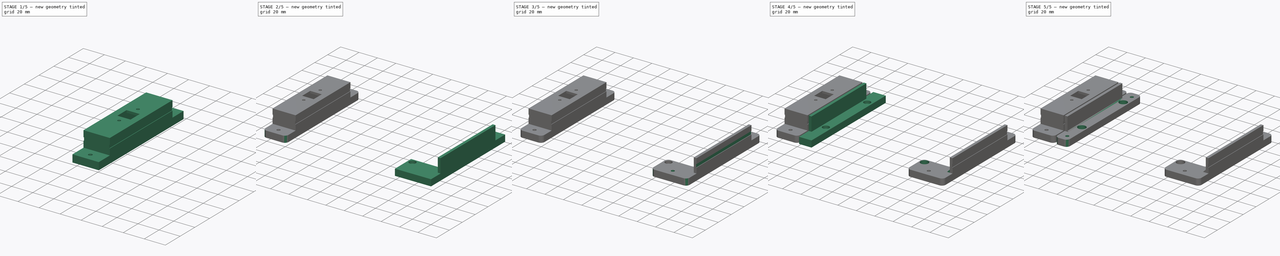
[diagram: build sequence overview — one tinted view per stage of 5, left to right]
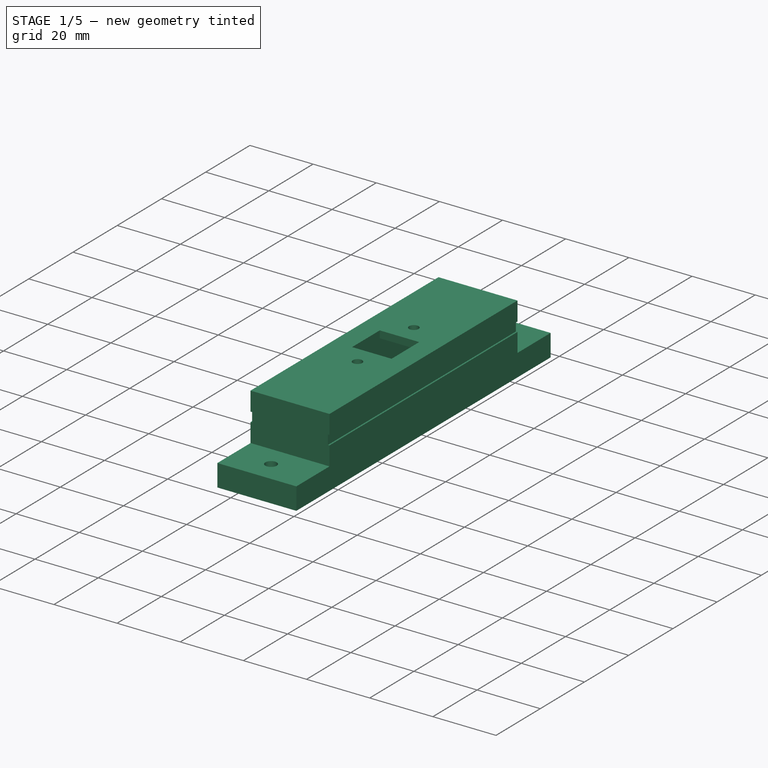
[diagram: stage 1 of 5 — iso view after this stage's code; geometry added in this stage tinted green]
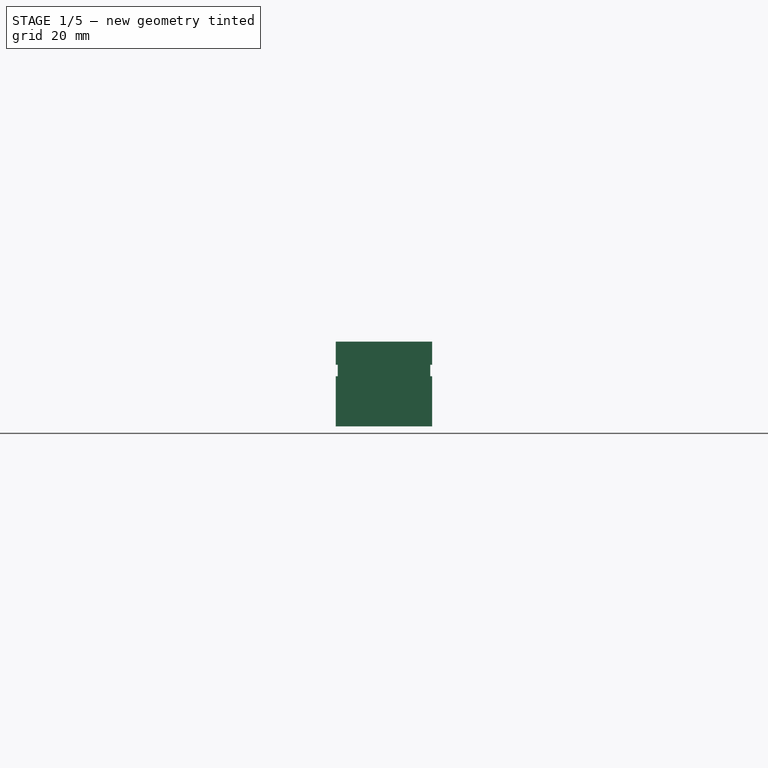
[diagram: stage 1 of 5 — front view after this stage's code; geometry added in this stage tinted green]
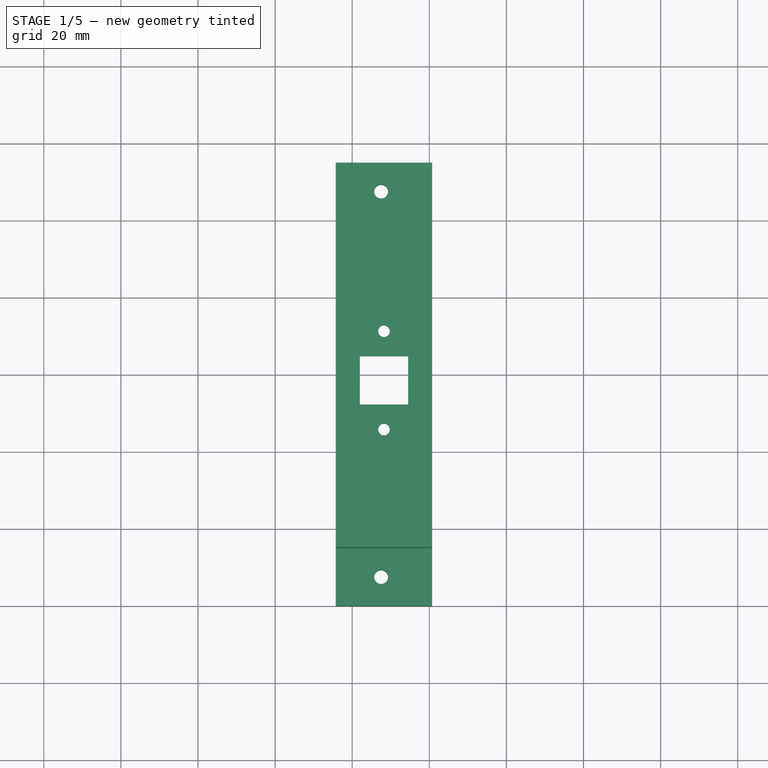
[diagram: stage 1 of 5 — top view after this stage's code; geometry added in this stage tinted green]
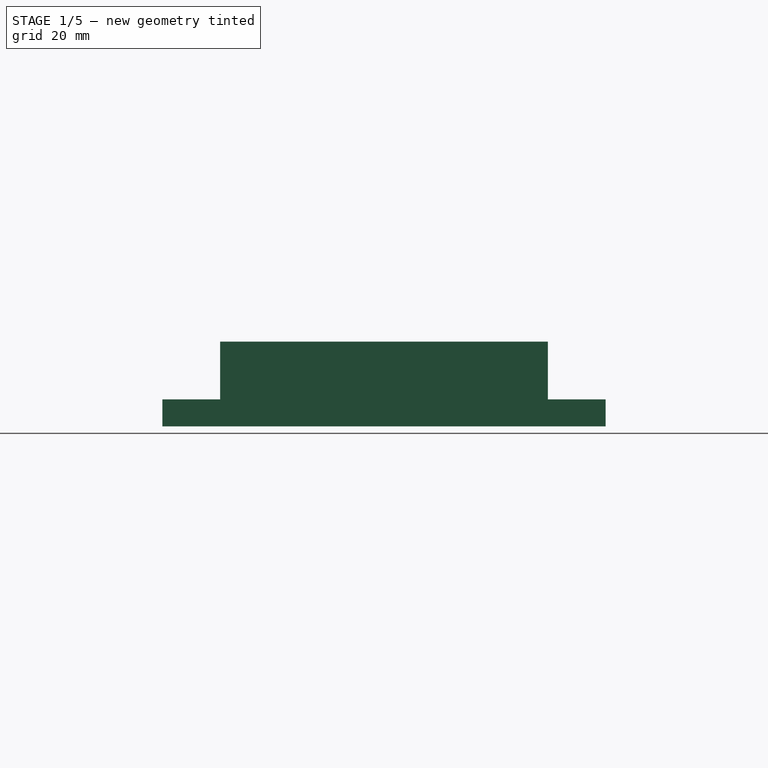
[diagram: stage 1 of 5 — right view after this stage's code; geometry added in this stage tinted green]
FCSTD DOCUMENT  (FreeCAD 0.15R4671 (Git))
Label: PSU_Brackets
License: All rights reserved
LicenseURL: http://en.wikipedia.org/wiki/All_rights_reserved
objects: Sketcher::SketchObject×27, PartDesign::Pocket×23, Part::Feature×6, PartDesign::Fillet×5, PartDesign::Pad×4, PartDesign::Chamfer×2
note: 94 computed .brp shape members not serialized (recipe doc carries the construction recipe); baked Part::Feature solids carry a one-line shape summary decoded from their .brp

FEATURE [Sketcher::SketchObject] Sketch019
  sketch-geometry (4):
    g0: LineSegment StartX=-104.25 StartY=115 StartZ=0 EndX=-79.25 EndY=115 EndZ=0
    g1: LineSegment StartX=-79.25 StartY=115 StartZ=0 EndX=-79.25 EndY=0 EndZ=0
    g2: LineSegment StartX=-79.25 StartY=0 StartZ=0 EndX=-104.25 EndY=0 EndZ=0
    g3: LineSegment StartX=-104.25 StartY=0 StartZ=0 EndX=-104.25 EndY=115 EndZ=0
  constraints (10):
    c: Coincident(g0,g1)
    c: Coincident(g1,g2)
    c: Coincident(g2,g3)
    c: Coincident(g3,g0)
    c: Horizontal(g0)
    c: Horizontal(g2)
    c: Vertical(g1)
    c: Vertical(g3)
    c: DistanceX(g2,g1) = 25
    c: DistanceY(g0,g2) = -115
FEATURE [PartDesign::Pad] Pad002
  Length = 7
  Length2 = 100
  Sketch = -> Sketch019
  Type = 0
FEATURE [Sketcher::SketchObject] Sketch020
  Placement = pos=(0,0,7) rot=(0,0,1;0rad)
  Support = -> Pad002 [Face6]
  sketch-geometry (4):
    g0: LineSegment StartX=-79.25 StartY=100 StartZ=0 EndX=-104.25 EndY=100 EndZ=0
    g1: LineSegment StartX=-104.25 StartY=100 StartZ=0 EndX=-104.25 EndY=15 EndZ=0
    g2: LineSegment StartX=-104.25 StartY=15 StartZ=0 EndX=-79.25 EndY=15 EndZ=0
    g3: LineSegment StartX=-79.25 StartY=15 StartZ=0 EndX=-79.25 EndY=100 EndZ=0
  constraints (8):
    c: Coincident(g0,g1)
    c: Coincident(g1,g2)
    c: Coincident(g2,g3)
    c: Coincident(g3,g0)
    c: Horizontal(g0)
    c: Horizontal(g2)
    c: Vertical(g1)
    c: Vertical(g3)
FEATURE [PartDesign::Pad] Pad003
  Length = 15
  Length2 = 100
  Sketch = -> Sketch020
  Type = 0
FEATURE [Sketcher::SketchObject] Sketch021
  Placement = pos=(0,0,22) rot=(0,0,1;0rad)
  Support = -> Pad003 [Face8]
  sketch-geometry (4):
    g0: LineSegment StartX=-98 StartY=64.5 StartZ=0 EndX=-85.5 EndY=64.5 EndZ=0
    g1: LineSegment StartX=-85.5 StartY=64.5 StartZ=0 EndX=-85.5 EndY=52 EndZ=0
    g2: LineSegment StartX=-85.5 StartY=52 StartZ=0 EndX=-98 EndY=52 EndZ=0
    g3: LineSegment StartX=-98 StartY=52 StartZ=0 EndX=-98 EndY=64.5 EndZ=0
  constraints (10):
    c: Coincident(g0,g1)
    c: Coincident(g1,g2)
    c: Coincident(g2,g3)
    c: Coincident(g3,g0)
    c: Horizontal(g0)
    c: Horizontal(g2)
    c: Vertical(g1)
    c: Vertical(g3)
    c: DistanceX(g0,g0) = 12.5
    c: DistanceY(g0,g1) = -12.5
FEATURE [PartDesign::Pocket] Pocket017
  Length = 5
  Sketch = -> Sketch021
  Type = 1
FEATURE [Sketcher::SketchObject] Sketch022
  Placement = pos=(0,0,22) rot=(0,0,1;0rad)
  Support = -> Pocket017 [Face9]
  sketch-geometry (2):
    g0: Circle CenterX=-91.75 CenterY=71 CenterZ=0 NormalX=0 NormalY=0 NormalZ=1 Radius=1.5
    g1: Circle CenterX=-91.75 CenterY=45.5 CenterZ=0 NormalX=0 NormalY=0 NormalZ=1 Radius=1.5
  constraints (4):
    c: DistanceY(g1,g0) = 25.5
    c: Radius(g1) = 1.5
    c: Equal(g1,g0)
    c: DistanceX(g0,g1) = 0
FEATURE [PartDesign::Pocket] Pocket018
  Length = 5
  Sketch = -> Sketch022
  Type = 1
FEATURE [Sketcher::SketchObject] Sketch023
  Placement = pos=(0,0,0) rot=(1,0,0;3.14159rad)
  Support = -> Pocket018 [Face4]
  sketch-geometry (4):
    g0: LineSegment StartX=-99.75 StartY=-17.5 StartZ=0 EndX=-83.75 EndY=-17.5 EndZ=0
    g1: LineSegment StartX=-83.75 StartY=-17.5 StartZ=0 EndX=-83.75 EndY=-97.5 EndZ=0
    g2: LineSegment StartX=-83.75 StartY=-97.5 StartZ=0 EndX=-99.75 EndY=-97.5 EndZ=0
    g3: LineSegment StartX=-99.75 StartY=-97.5 StartZ=0 EndX=-99.75 EndY=-17.5 EndZ=0
  constraints (10):
    c: Coincident(g0,g1)
    c: Coincident(g1,g2)
    c: Coincident(g2,g3)
    c: Coincident(g3,g0)
    c: Horizontal(g0)
    c: Horizontal(g2)
    c: Vertical(g1)
    c: Vertical(g3)
    c: DistanceY(g0,g2) = -80
    c: DistanceX(g0,g0) = -16
FEATURE [PartDesign::Pocket] Pocket019
  Length = 19.75
  Sketch = -> Sketch023
  Type = 0
FEATURE [Sketcher::SketchObject] Sketch024
  Placement = pos=(0,15,0) rot=(1,0,0;1.5708rad)
  Support = -> Pocket019 [Face8]
  sketch-geometry (8):
    g0: LineSegment StartX=-104.75 StartY=16 StartZ=0 EndX=-103.75 EndY=16 EndZ=0
    g1: LineSegment StartX=-103.75 StartY=16 StartZ=0 EndX=-103.75 EndY=13 EndZ=0
    g2: LineSegment StartX=-103.75 StartY=13 StartZ=0 EndX=-104.75 EndY=13 EndZ=0
    g3: LineSegment StartX=-104.75 StartY=13 StartZ=0 EndX=-104.75 EndY=16 EndZ=0
    g4: LineSegment StartX=-78.75 StartY=16 StartZ=0 EndX=-79.75 EndY=16 EndZ=0
    g5: LineSegment StartX=-79.75 StartY=16 StartZ=0 EndX=-79.75 EndY=13 EndZ=0
    g6: LineSegment StartX=-79.75 StartY=13 StartZ=0 EndX=-78.75 EndY=13 EndZ=0
    g7: LineSegment StartX=-78.75 StartY=13 StartZ=0 EndX=-78.75 EndY=16 EndZ=0
  constraints (16):
    c: Coincident(g0,g1)
    c: Coincident(g1,g2)
    c: Coincident(g2,g3)
    c: Coincident(g3,g0)
    c: Horizontal(g0)
    c: Horizontal(g2)
    c: Vertical(g1)
    c: Vertical(g3)
    c: Coincident(g4,g5)
    c: Coincident(g5,g6)
    c: Coincident(g6,g7)
    c: Coincident(g7,g4)
    c: Horizontal(g4)
    c: Horizontal(g6)
    c: Vertical(g5)
    c: Vertical(g7)
FEATURE [PartDesign::Pocket] Pocket020
  Length = 5
  Sketch = -> Sketch024
  Type = 1
FEATURE [Sketcher::SketchObject] Sketch025
  Placement = pos=(0,0,0) rot=(1,0,0;3.14159rad)
  Support = -> Pocket020 [Face4]
  sketch-geometry (2):
    g0: Circle CenterX=-92.5 CenterY=-107.5 CenterZ=0 NormalX=0 NormalY=0 NormalZ=1 Radius=1.8
    g1: Circle CenterX=-92.5 CenterY=-7.5 CenterZ=0 NormalX=0 NormalY=0 NormalZ=1 Radius=1.8
  constraints (2):
    c: Radius(g1) = 1.8
    c: Equal(g1,g0)
FEATURE [PartDesign::Pocket] Pocket021
  Length = 5
  Sketch = -> Sketch025
  Type = 1
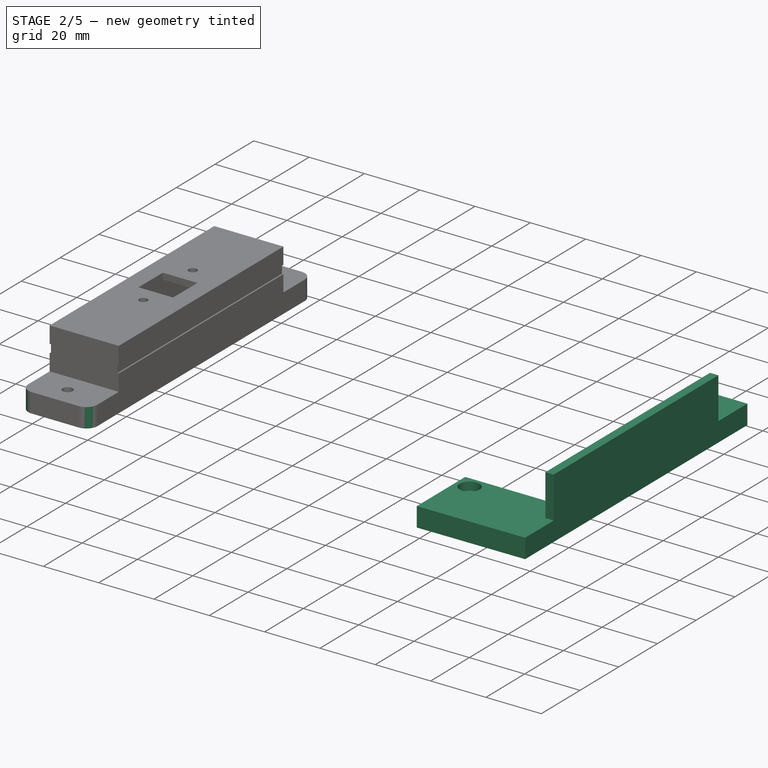
[diagram: stage 2 of 5 — iso view after this stage's code; geometry added in this stage tinted green]
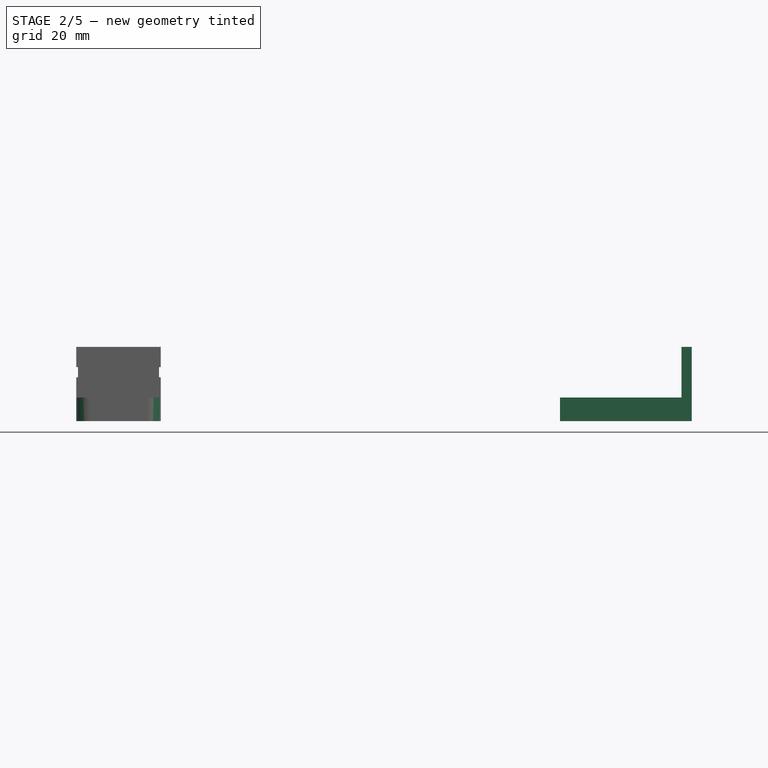
[diagram: stage 2 of 5 — front view after this stage's code; geometry added in this stage tinted green]
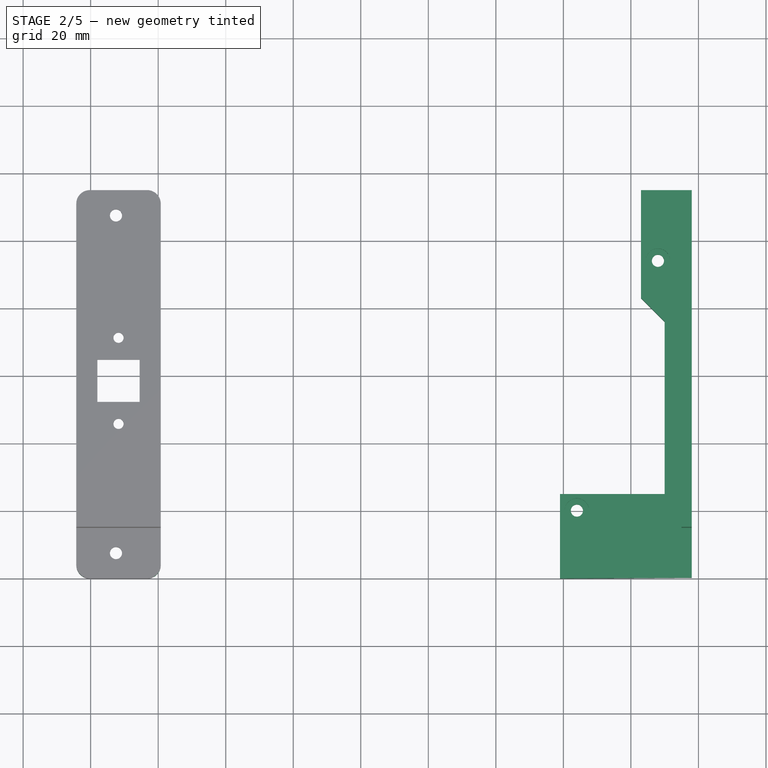
[diagram: stage 2 of 5 — top view after this stage's code; geometry added in this stage tinted green]
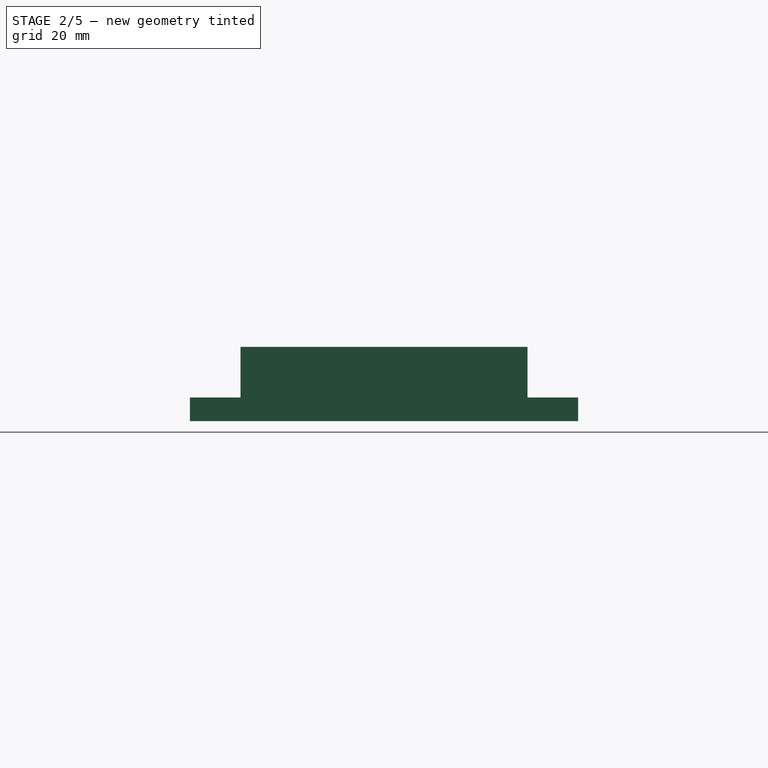
[diagram: stage 2 of 5 — right view after this stage's code; geometry added in this stage tinted green]
FEATURE [Part::Feature] Part__Feature  label="ATX Power Supply"
  Placement = pos=(0,14.5,0.5) rot=(0,0,1;0rad)
  shape: bbox 150 x 86 x 142.5 mm, 1277 faces (baked)
FEATURE [Part::Feature] Part__Feature001  label="ATX Power Supply001"
  Placement = pos=(44.5,38.5,0.5) rot=(0,0,1;0rad)
  shape: bbox 49.31 x 22.99 x 31 mm, 116 faces (baked)
FEATURE [Part::Feature] Part__Feature002  label="ATX Power Supply002"
  Placement = pos=(36,69,-7.5) rot=(0,0,-1;1.5708rad)
  shape: bbox 21 x 15 x 21.45 mm, 145 faces (baked)
FEATURE [Part::Feature] Part__Feature003  label="ATX Power Supply003"
  Placement = pos=(0,99.675,-70) rot=(0,0.707107,-0.707107;3.14159rad)
  shape: bbox 123 x 3.274 x 123 mm, 78 faces (baked)
FEATURE [Sketcher::SketchObject] Sketch
  sketch-geometry (8):
    g0: LineSegment StartX=39 StartY=0 StartZ=0 EndX=39 EndY=25 EndZ=0
    g1: LineSegment StartX=39 StartY=25 StartZ=0 EndX=70 EndY=25 EndZ=0
    g2: LineSegment StartX=63 StartY=115 StartZ=0 EndX=78 EndY=115 EndZ=0
    g3: LineSegment StartX=78 StartY=115 StartZ=0 EndX=78 EndY=0.241195 EndZ=0
    g4: LineSegment StartX=78 StartY=0.241195 StartZ=0 EndX=39 EndY=0 EndZ=0
    g5: LineSegment StartX=70 StartY=25 StartZ=0 EndX=70 EndY=76 EndZ=0
    g6: LineSegment StartX=70 StartY=76 StartZ=0 EndX=63 EndY=83 EndZ=0
    g7: LineSegment StartX=63 StartY=83 StartZ=0 EndX=63 EndY=115 EndZ=0
  constraints (7):
    c: Coincident(g0,g1)
    c: Coincident(g2,g3)
    c: Coincident(g3,g4)
    c: Coincident(g4,g0)
    c: Coincident(g5,g6)
    c: Coincident(g6,g7)
    c: Coincident(g2,g7)
FEATURE [Part::Feature] Part__Feature004  label="OB1515_180mm"
  Placement = pos=(-105,107.5,14.5) rot=(0,1,0;1.5708rad)
  shape: bbox 180 x 15 x 15 mm, 158 faces (baked)
FEATURE [Part::Feature] Part__Feature005  label="OB1515_180mm001"
  Placement = pos=(-105,107.5,14.5) rot=(0,1,0;1.5708rad)
  shape: bbox 180 x 15 x 15 mm, 158 faces (baked)
FEATURE [PartDesign::Pad] Pad
  Length = 22
  Length2 = 100
  Sketch = -> Sketch
  Type = 0
FEATURE [Sketcher::SketchObject] Sketch001
  Placement = pos=(78,0,0) rot=(0.57735,0.57735,0.57735;2.0944rad)
  Support = -> Pad [Face7]
  sketch-geometry (8):
    g0: LineSegment StartX=-1 StartY=23 StartZ=0 EndX=15 EndY=23 EndZ=0
    g1: LineSegment StartX=15 StartY=23 StartZ=0 EndX=15 EndY=7 EndZ=0
    g2: LineSegment StartX=15 StartY=7 StartZ=0 EndX=-1 EndY=7 EndZ=0
    g3: LineSegment StartX=-1 StartY=7 StartZ=0 EndX=-1 EndY=23 EndZ=0
    g4: LineSegment StartX=100 StartY=7 StartZ=0 EndX=116 EndY=7 EndZ=0
    g5: LineSegment StartX=116 StartY=7 StartZ=0 EndX=116 EndY=23 EndZ=0
    g6: LineSegment StartX=116 StartY=23 StartZ=0 EndX=100 EndY=23 EndZ=0
    g7: LineSegment StartX=100 StartY=23 StartZ=0 EndX=100 EndY=7 EndZ=0
  constraints (16):
    c: Coincident(g0,g1)
    c: Coincident(g1,g2)
    c: Coincident(g2,g3)
    c: Coincident(g3,g0)
    c: Horizontal(g0)
    c: Horizontal(g2)
    c: Vertical(g1)
    c: Vertical(g3)
    c: Coincident(g4,g5)
    c: Coincident(g5,g6)
    c: Coincident(g6,g7)
    c: Coincident(g7,g4)
    c: Horizontal(g4)
    c: Horizontal(g6)
    c: Vertical(g5)
    c: Vertical(g7)
FEATURE [PartDesign::Pocket] Pocket
  Length = 5
  Sketch = -> Sketch001
  Type = 1
FEATURE [Sketcher::SketchObject] Sketch002
  Placement = pos=(0,0,22) rot=(0,0,1;0rad)
  Support = -> Pocket [Face4]
  sketch-geometry (4):
    g0: LineSegment StartX=37 StartY=100 StartZ=0 EndX=75 EndY=100 EndZ=0
    g1: LineSegment StartX=75 StartY=100 StartZ=0 EndX=75 EndY=15 EndZ=0
    g2: LineSegment StartX=75 StartY=15 StartZ=0 EndX=37 EndY=15 EndZ=0
    g3: LineSegment StartX=37 StartY=15 StartZ=0 EndX=37 EndY=100 EndZ=0
  constraints (8):
    c: Coincident(g0,g1)
    c: Coincident(g1,g2)
    c: Coincident(g2,g3)
    c: Coincident(g3,g0)
    c: Horizontal(g0)
    c: Horizontal(g2)
    c: Vertical(g1)
    c: Vertical(g3)
FEATURE [PartDesign::Pocket] Pocket001
  Length = 15
  Sketch = -> Sketch002
  Type = 0
FEATURE [Sketcher::SketchObject] Sketch003
  Placement = pos=(0,0,7) rot=(0,0,1;0rad)
  Support = -> Pocket001 [Face14]
  sketch-geometry (2):
    g0: Circle CenterX=68 CenterY=94.1191 CenterZ=0 NormalX=0 NormalY=0 NormalZ=1 Radius=1.8
    g1: Circle CenterX=44 CenterY=20.129 CenterZ=0 NormalX=0 NormalY=0 NormalZ=1 Radius=1.8
  constraints (2):
    c: Radius(g0) = 1.8
    c: Radius(g1) = 1.8
FEATURE [PartDesign::Pocket] Pocket002
  Length = 5
  Sketch = -> Sketch003
  Type = 1
FEATURE [Sketcher::SketchObject] Sketch004
  Placement = pos=(0,0,7) rot=(0,0,1;0rad)
  Support = -> Pocket002 [Face4]
  sketch-geometry (2):
    g0: Circle CenterX=68 CenterY=94.116 CenterZ=0 NormalX=0 NormalY=0 NormalZ=1 Radius=3.6
    g1: Circle CenterX=44 CenterY=20.1242 CenterZ=0 NormalX=0 NormalY=0 NormalZ=1 Radius=3.6
  constraints (2):
    c: Radius(g0) = 3.6
    c: Radius(g1) = 3.6
FEATURE [PartDesign::Pocket] Pocket003
  Length = 3
  Sketch = -> Sketch004
  Type = 0
FEATURE [Sketcher::SketchObject] Sketch026
  Placement = pos=(0,0,0) rot=(1,0,0;3.14159rad)
  Support = -> Pocket021 [Face4]
  sketch-geometry (2):
    g0: Circle CenterX=-92.5 CenterY=-7.5 CenterZ=0 NormalX=0 NormalY=0 NormalZ=1 Radius=3.6
    g1: Circle CenterX=-92.5 CenterY=-107.5 CenterZ=0 NormalX=0 NormalY=0 NormalZ=1 Radius=3.6
  constraints (2):
    c: Radius(g1) = 3.6
    c: Equal(g1,g0)
FEATURE [PartDesign::Pocket] Pocket022  label="USB_Bracket_1"
  Length = 3
  Sketch = -> Sketch026
  Type = 0
FEATURE [PartDesign::Fillet] Fillet004  label="USB_Bracket"
  Base = -> Pocket022 [Edge1,Edge2,Edge17,Edge5]
  Radius = 4
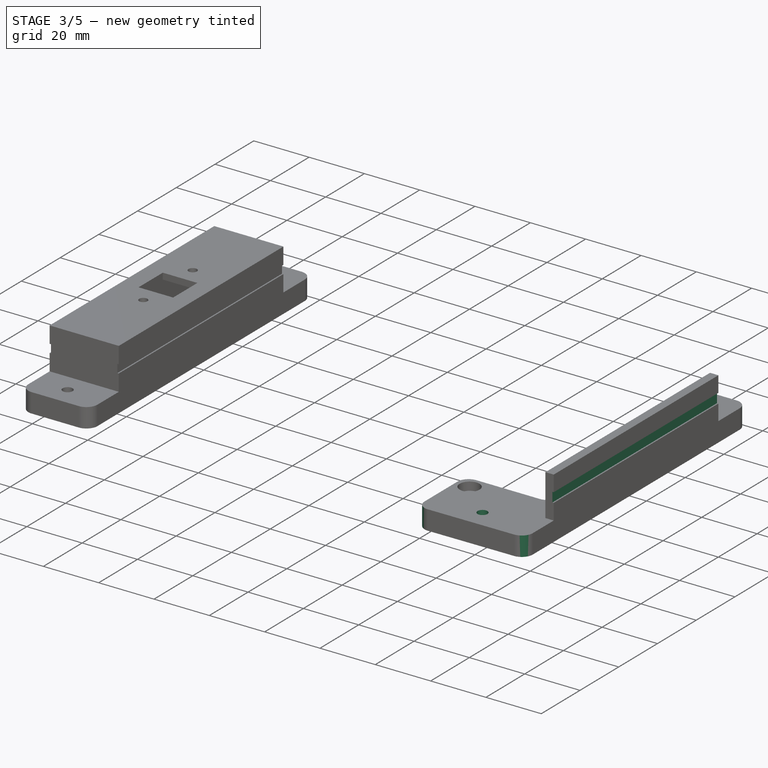
[diagram: stage 3 of 5 — iso view after this stage's code; geometry added in this stage tinted green]
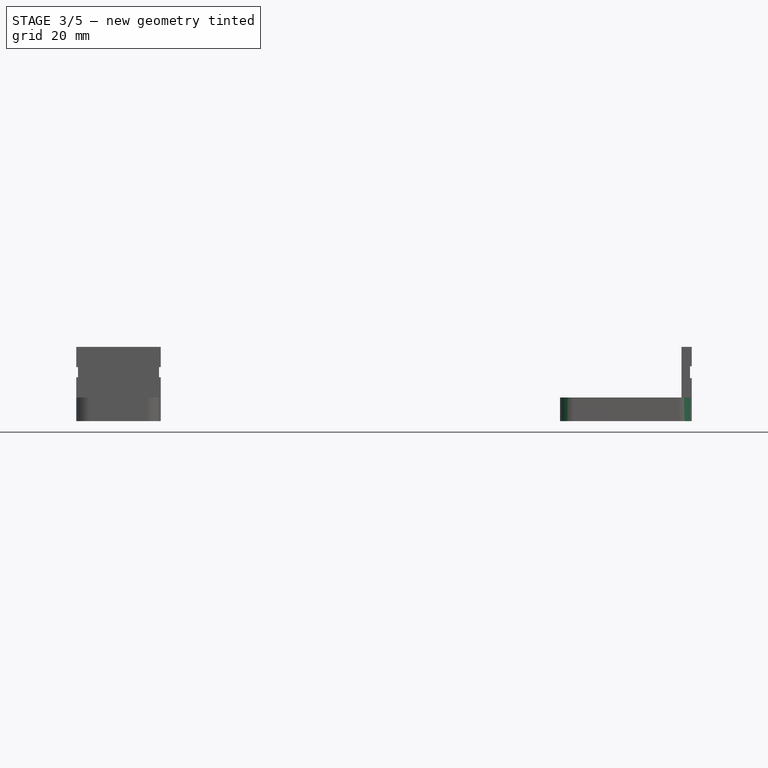
[diagram: stage 3 of 5 — front view after this stage's code; geometry added in this stage tinted green]
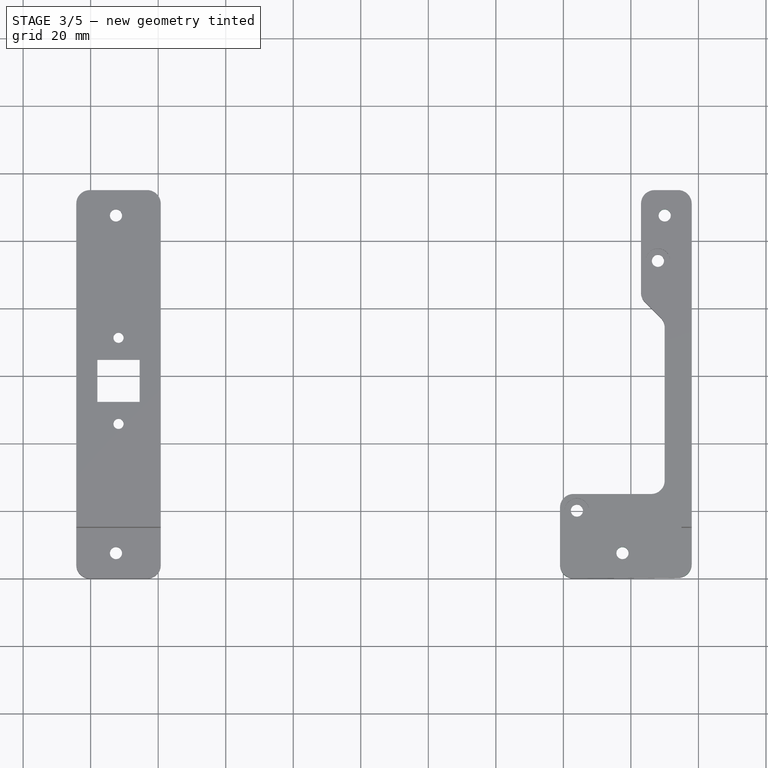
[diagram: stage 3 of 5 — top view after this stage's code; geometry added in this stage tinted green]
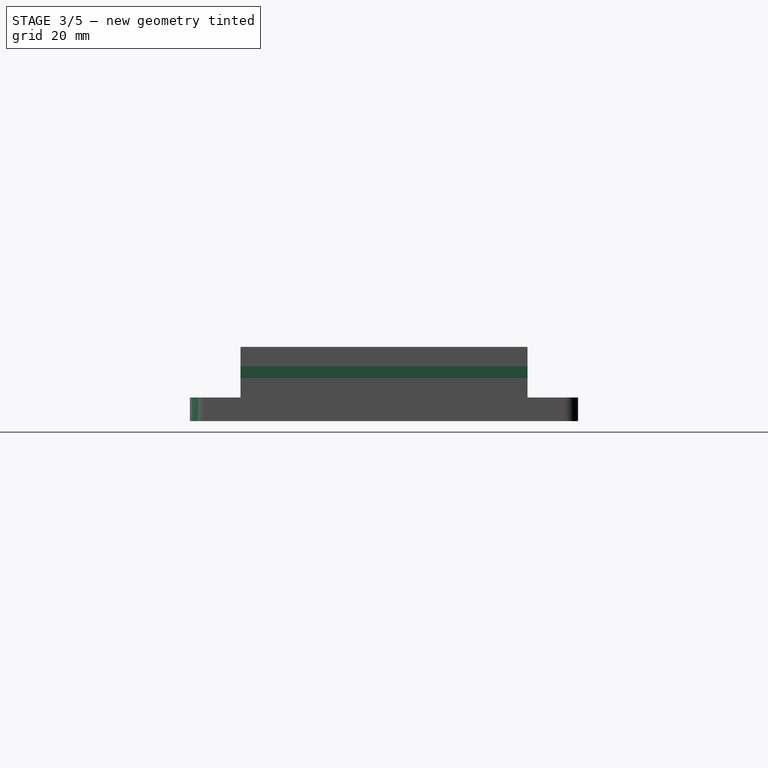
[diagram: stage 3 of 5 — right view after this stage's code; geometry added in this stage tinted green]
FEATURE [PartDesign::Fillet] Fillet
  Base = -> Pocket003 [Edge2,Edge15]
  Radius = 4
FEATURE [PartDesign::Fillet] Fillet001
  Base = -> Fillet [Edge43,Edge42]
  Radius = 4
FEATURE [Sketcher::SketchObject] Sketch005
  Placement = pos=(78,0,0) rot=(0.57735,0.57735,0.57735;2.0944rad)
  Support = -> Fillet001 [Face13]
  sketch-geometry (4):
    g0: LineSegment StartX=13.5 StartY=16.25 StartZ=0 EndX=101 EndY=16.25 EndZ=0
    g1: LineSegment StartX=101 StartY=16.25 StartZ=0 EndX=101 EndY=12.75 EndZ=0
    g2: LineSegment StartX=101 StartY=12.75 StartZ=0 EndX=13.5 EndY=12.75 EndZ=0
    g3: LineSegment StartX=13.5 StartY=12.75 StartZ=0 EndX=13.5 EndY=16.25 EndZ=0
  constraints (8):
    c: Coincident(g0,g1)
    c: Coincident(g1,g2)
    c: Coincident(g2,g3)
    c: Coincident(g3,g0)
    c: Horizontal(g0)
    c: Horizontal(g2)
    c: Vertical(g1)
    c: Vertical(g3)
FEATURE [PartDesign::Pocket] Pocket004
  Length = 0.5
  Sketch = -> Sketch005
  Type = 0
FEATURE [Sketcher::SketchObject] Sketch006
  Placement = pos=(0,0,0) rot=(1,0,0;3.14159rad)
  Support = -> Pocket004 [Face1]
  sketch-geometry (2):
    g0: Circle CenterX=70 CenterY=-107.5 CenterZ=0 NormalX=0 NormalY=0 NormalZ=1 Radius=1.8
    g1: Circle CenterX=57.5 CenterY=-7.5 CenterZ=0 NormalX=0 NormalY=0 NormalZ=1 Radius=1.8
  constraints (2):
    c: Radius(g1) = 1.8
    c: Radius(g0) = 1.8
FEATURE [PartDesign::Pocket] Pocket005
  Length = 5
  Sketch = -> Sketch006
  Type = 1
FEATURE [Sketcher::SketchObject] Sketch007
  Placement = pos=(0,0,0) rot=(1,0,0;3.14159rad)
  Support = -> Pocket005 [Face1]
  sketch-geometry (2):
    g0: Circle CenterX=57.5 CenterY=-7.5 CenterZ=0 NormalX=0 NormalY=0 NormalZ=1 Radius=3.6
    g1: Circle CenterX=70 CenterY=-107.5 CenterZ=0 NormalX=0 NormalY=0 NormalZ=1 Radius=3.6
  constraints (2):
    c: Radius(g1) = 3.6
    c: Equal(g1,g0)
FEATURE [PartDesign::Pocket] Pocket006
  Length = 3
  Sketch = -> Sketch007
  Type = 0
FEATURE [PartDesign::Fillet] Fillet002
  Base = -> Pocket006 [Edge35,Edge41,Edge38,Edge32]
  Radius = 4
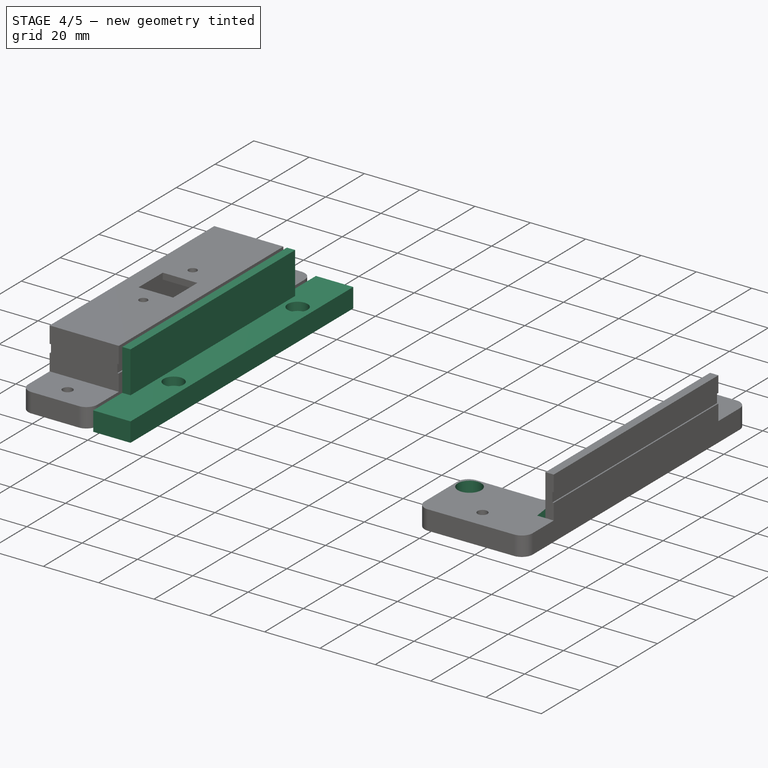
[diagram: stage 4 of 5 — iso view after this stage's code; geometry added in this stage tinted green]
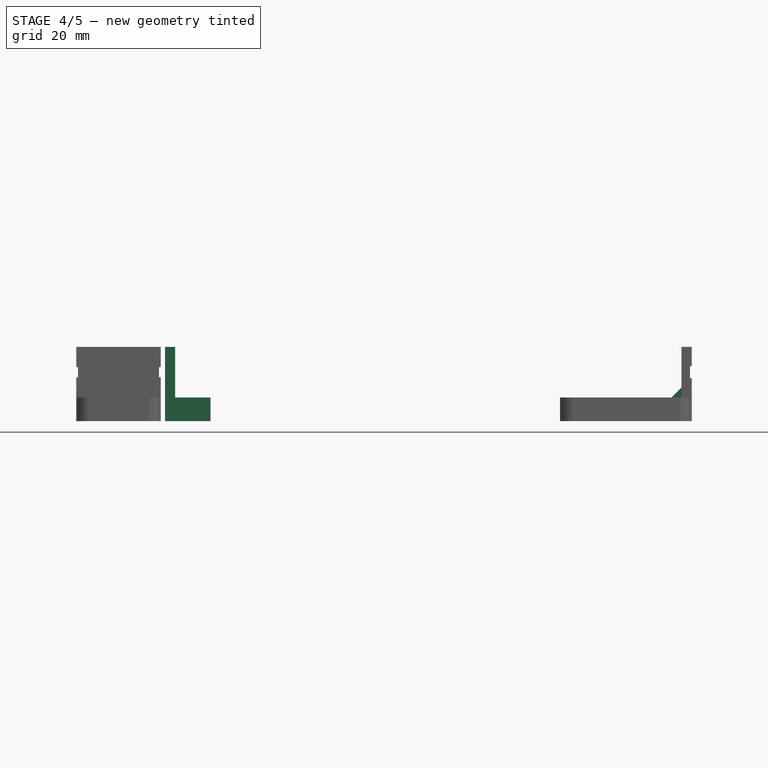
[diagram: stage 4 of 5 — front view after this stage's code; geometry added in this stage tinted green]
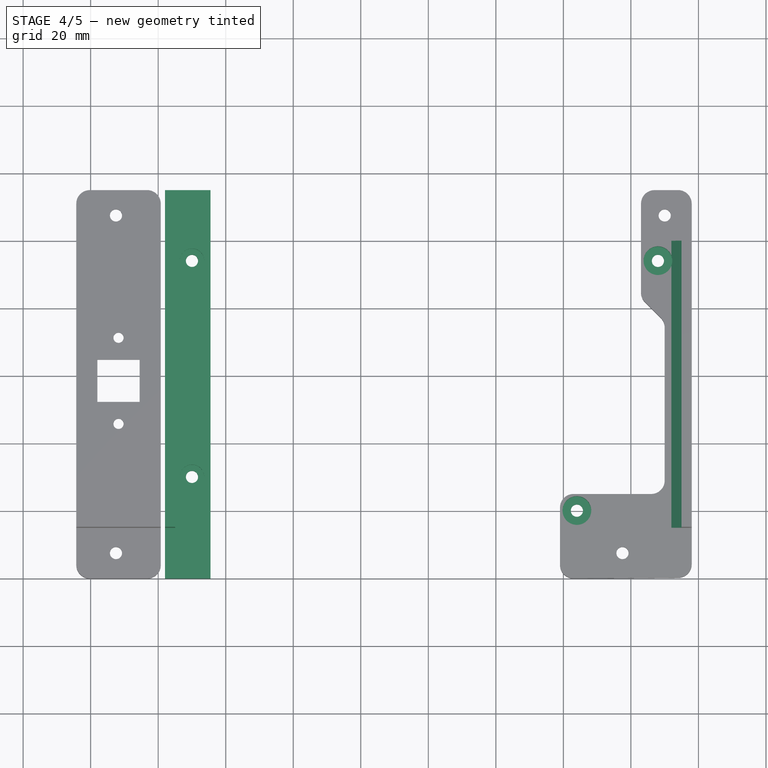
[diagram: stage 4 of 5 — top view after this stage's code; geometry added in this stage tinted green]
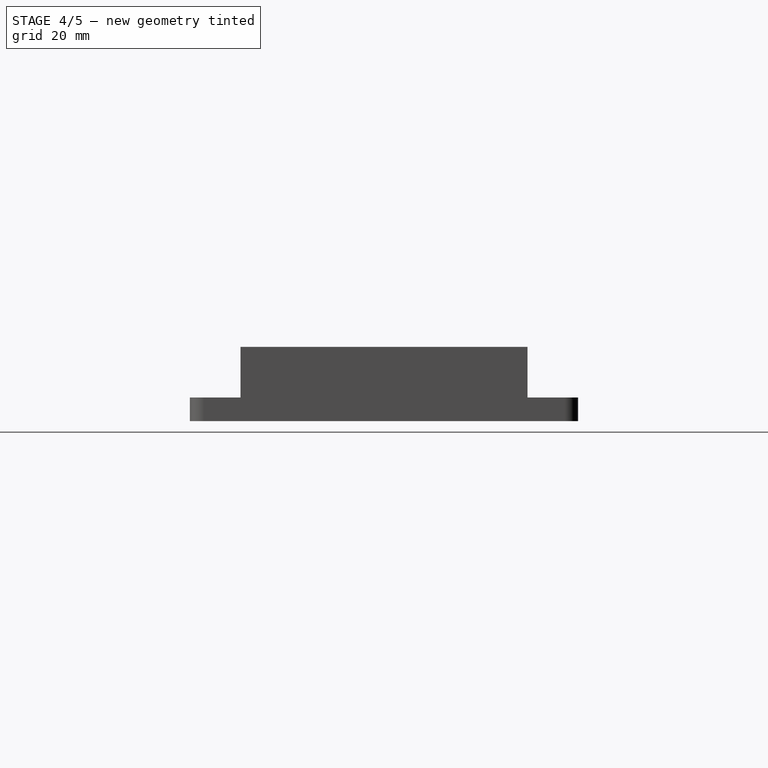
[diagram: stage 4 of 5 — right view after this stage's code; geometry added in this stage tinted green]
FEATURE [PartDesign::Chamfer] Chamfer  label="PSU_RightBracket_1"
  Base = -> Fillet002 [Edge68]
  Size = 3
FEATURE [Sketcher::SketchObject] Sketch008
  sketch-geometry (4):
    g0: LineSegment StartX=-78 StartY=115 StartZ=0 EndX=-78 EndY=0 EndZ=0
    g1: LineSegment StartX=-78 StartY=0 StartZ=0 EndX=-64.5 EndY=0 EndZ=0
    g2: LineSegment StartX=-64.5 StartY=0 StartZ=0 EndX=-64.5 EndY=115 EndZ=0
    g3: LineSegment StartX=-64.5 StartY=115 StartZ=0 EndX=-78 EndY=115 EndZ=0
  constraints (9):
    c: PointOnObject(g0,g-1)
    c: Vertical(g0)
    c: Coincident(g0,g1)
    c: PointOnObject(g1,g-1)
    c: Coincident(g1,g2)
    c: Coincident(g2,g3)
    c: Coincident(g3,g0)
    c: Horizontal(g3)
    c: Vertical(g2)
FEATURE [PartDesign::Pad] Pad001
  Length = 22
  Length2 = 100
  Sketch = -> Sketch008
  Type = 0
FEATURE [Sketcher::SketchObject] Sketch009
  Placement = pos=(-78,0,0) rot=(0.57735,-0.57735,-0.57735;2.0944rad)
  Support = -> Pad001 [Face1]
  sketch-geometry (8):
    g0: LineSegment StartX=-116 StartY=23 StartZ=0 EndX=-100 EndY=23 EndZ=0
    g1: LineSegment StartX=-100 StartY=23 StartZ=0 EndX=-100 EndY=7 EndZ=0
    g2: LineSegment StartX=-100 StartY=7 StartZ=0 EndX=-116 EndY=7 EndZ=0
    g3: LineSegment StartX=-116 StartY=7 StartZ=0 EndX=-116 EndY=23 EndZ=0
    g4: LineSegment StartX=1 StartY=23 StartZ=0 EndX=-15 EndY=23 EndZ=0
    g5: LineSegment StartX=-15 StartY=23 StartZ=0 EndX=-15 EndY=7 EndZ=0
    g6: LineSegment StartX=-15 StartY=7 StartZ=0 EndX=1 EndY=7 EndZ=0
    g7: LineSegment StartX=1 StartY=7 StartZ=0 EndX=1 EndY=23 EndZ=0
  constraints (16):
    c: Coincident(g0,g1)
    c: Coincident(g1,g2)
    c: Coincident(g2,g3)
    c: Coincident(g3,g0)
    c: Horizontal(g0)
    c: Horizontal(g2)
    c: Vertical(g1)
    c: Vertical(g3)
    c: Coincident(g4,g5)
    c: Coincident(g5,g6)
    c: Coincident(g6,g7)
    c: Coincident(g7,g4)
    c: Horizontal(g4)
    c: Horizontal(g6)
    c: Vertical(g5)
    c: Vertical(g7)
FEATURE [PartDesign::Pocket] Pocket007
  Length = 30
  Sketch = -> Sketch009
  Type = 0
FEATURE [Sketcher::SketchObject] Sketch010
  Placement = pos=(0,0,22) rot=(0,0,1;0rad)
  Support = -> Pocket007 [Face6]
  sketch-geometry (2):
    g0: Circle CenterX=-70.0016 CenterY=94.1053 CenterZ=0 NormalX=0 NormalY=0 NormalZ=1 Radius=1.8
    g1: Circle CenterX=-69.9934 CenterY=30.1026 CenterZ=0 NormalX=0 NormalY=0 NormalZ=1 Radius=1.8
  constraints (2):
    c: Radius(g0) = 1.8
    c: Equal(g0,g1)
FEATURE [PartDesign::Pocket] Pocket008
  Length = 5
  Sketch = -> Sketch010
  Type = 1
FEATURE [Sketcher::SketchObject] Sketch011
  Placement = pos=(0,0,22) rot=(0,0,1;0rad)
  Support = -> Pocket008 [Face6]
  sketch-geometry (2):
    g0: Circle CenterX=-70 CenterY=94.1171 CenterZ=0 NormalX=0 NormalY=0 NormalZ=1 Radius=3.6
    g1: Circle CenterX=-70 CenterY=30.1223 CenterZ=0 NormalX=0 NormalY=0 NormalZ=1 Radius=3.6
  constraints (2):
    c: Radius(g0) = 3.6
    c: Equal(g0,g1)
FEATURE [PartDesign::Pocket] Pocket009
  Length = 18
  Sketch = -> Sketch011
  Type = 0
FEATURE [Sketcher::SketchObject] Sketch012
  Placement = pos=(0,0,22) rot=(0,0,1;0rad)
  Support = -> Pocket009 [Face6]
  sketch-geometry (4):
    g0: LineSegment StartX=-64 StartY=100 StartZ=0 EndX=-75 EndY=100 EndZ=0
    g1: LineSegment StartX=-75 StartY=100 StartZ=0 EndX=-75 EndY=15 EndZ=0
    g2: LineSegment StartX=-75 StartY=15 StartZ=0 EndX=-64 EndY=15 EndZ=0
    g3: LineSegment StartX=-64 StartY=15 StartZ=0 EndX=-64 EndY=100 EndZ=0
  constraints (8):
    c: Coincident(g0,g1)
    c: Coincident(g1,g2)
    c: Coincident(g2,g3)
    c: Coincident(g3,g0)
    c: Horizontal(g0)
    c: Horizontal(g2)
    c: Vertical(g1)
    c: Vertical(g3)
FEATURE [PartDesign::Pocket] Pocket010
  Length = 15
  Sketch = -> Sketch012
  Type = 0
FEATURE [Sketcher::SketchObject] Sketch018
  Placement = pos=(0,0,7) rot=(0,0,1;0rad)
  Support = -> Chamfer [Face1]
  sketch-geometry (2):
    g0: Circle CenterX=44 CenterY=20.0955 CenterZ=0 NormalX=0 NormalY=0 NormalZ=1 Radius=4.25
    g1: Circle CenterX=68 CenterY=94.1075 CenterZ=0 NormalX=0 NormalY=0 NormalZ=1 Radius=4.25
  constraints (2):
    c: Radius(g1) = 4.25
    c: Equal(g1,g0)
FEATURE [PartDesign::Pocket] Pocket016  label="PSU_RightBracket"
  Length = 10
  Midplane = true
  Sketch = -> Sketch018
  Type = 0
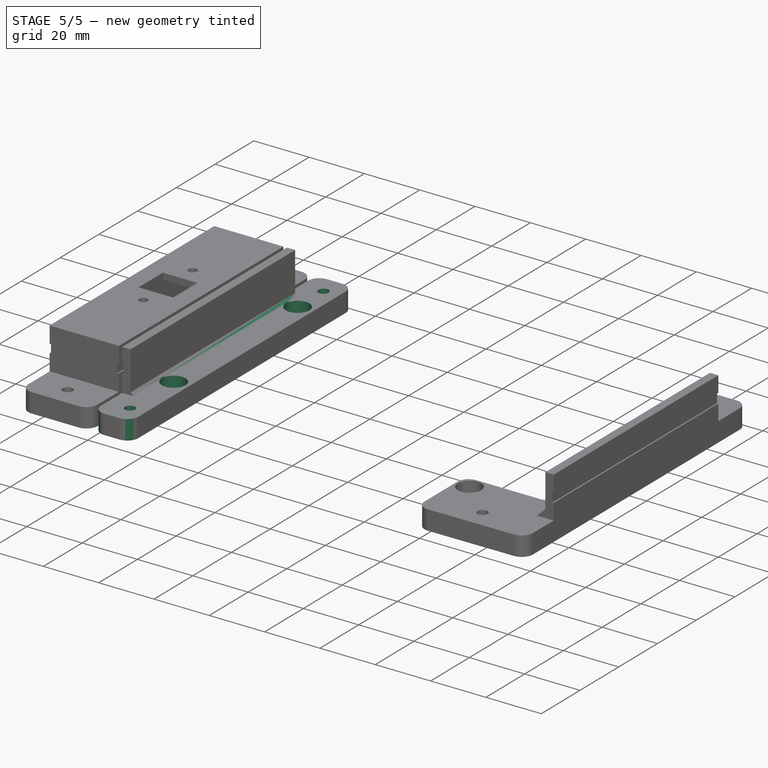
[diagram: stage 5 of 5 — iso view after this stage's code; geometry added in this stage tinted green]
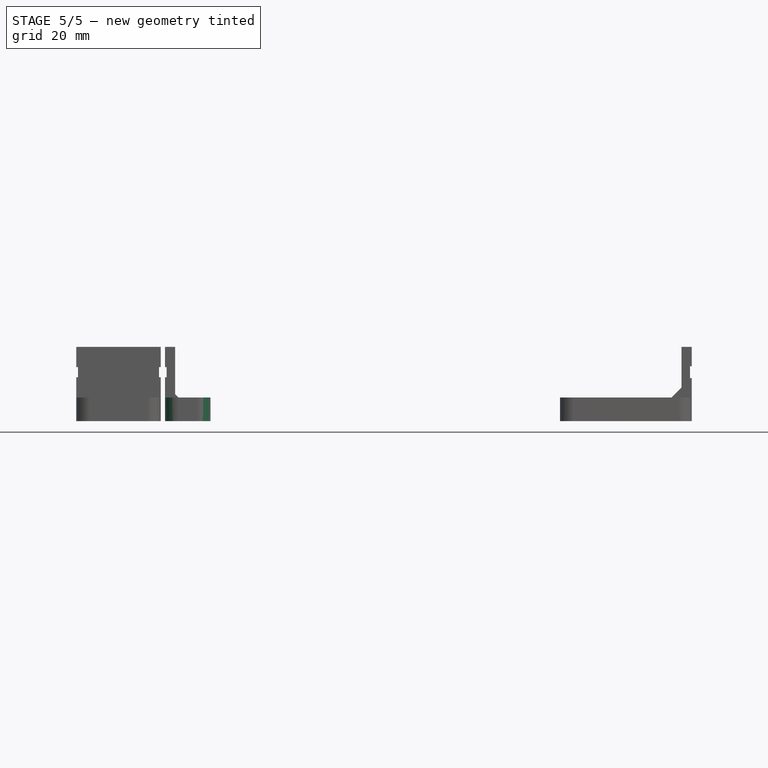
[diagram: stage 5 of 5 — front view after this stage's code; geometry added in this stage tinted green]
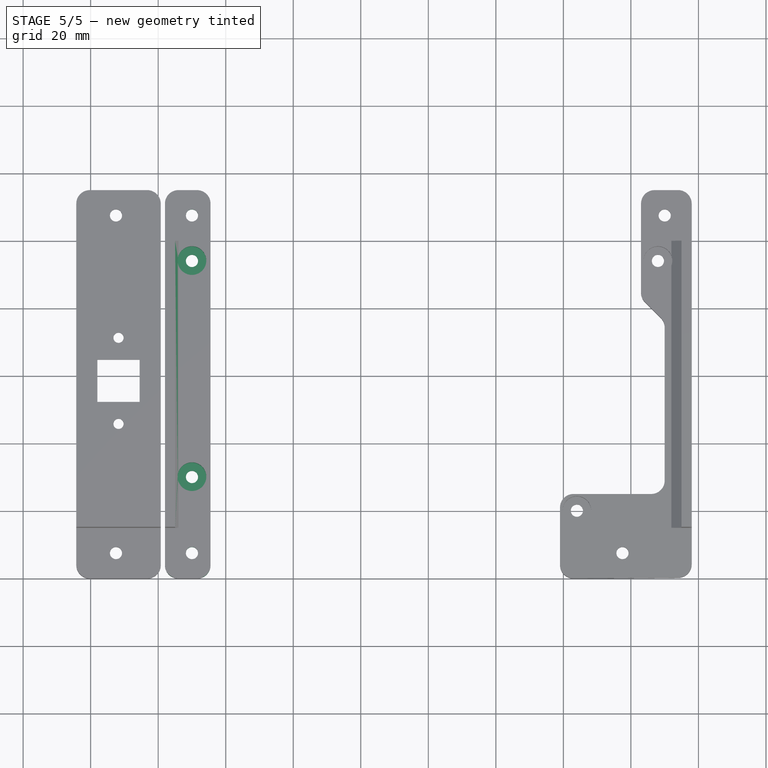
[diagram: stage 5 of 5 — top view after this stage's code; geometry added in this stage tinted green]
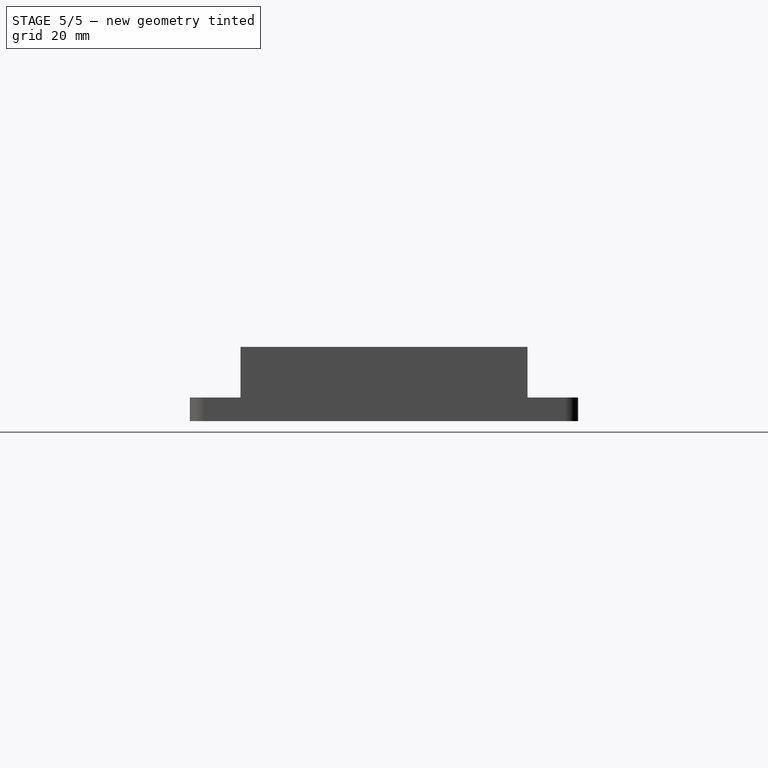
[diagram: stage 5 of 5 — right view after this stage's code; geometry added in this stage tinted green]
FEATURE [PartDesign::Chamfer] Chamfer001
  Base = -> Pocket010 [Edge32]
  Size = 1
FEATURE [Sketcher::SketchObject] Sketch013
  Placement = pos=(-78,0,0) rot=(0.57735,-0.57735,-0.57735;2.0944rad)
  Support = -> Chamfer001 [Face6]
  sketch-geometry (4):
    g0: LineSegment StartX=-101.5 StartY=16 StartZ=0 EndX=-14 EndY=16 EndZ=0
    g1: LineSegment StartX=-14 StartY=16 StartZ=0 EndX=-14 EndY=13 EndZ=0
    g2: LineSegment StartX=-14 StartY=13 StartZ=0 EndX=-101.5 EndY=13 EndZ=0
    g3: LineSegment StartX=-101.5 StartY=13 StartZ=0 EndX=-101.5 EndY=16 EndZ=0
  constraints (8):
    c: Coincident(g0,g1)
    c: Coincident(g1,g2)
    c: Coincident(g2,g3)
    c: Coincident(g3,g0)
    c: Horizontal(g0)
    c: Horizontal(g2)
    c: Vertical(g1)
    c: Vertical(g3)
FEATURE [PartDesign::Pocket] Pocket011
  Length = 0.5
  Sketch = -> Sketch013
  Type = 0
FEATURE [Sketcher::SketchObject] Sketch014
  Placement = pos=(0,0,0) rot=(1,0,0;3.14159rad)
  Support = -> Pocket011 [Face12]
  sketch-geometry (2):
    g0: Circle CenterX=-70 CenterY=-7.5 CenterZ=0 NormalX=0 NormalY=0 NormalZ=1 Radius=1.8
    g1: Circle CenterX=-70 CenterY=-107.5 CenterZ=0 NormalX=0 NormalY=0 NormalZ=1 Radius=1.8
  constraints (2):
    c: Radius(g1) = 1.8
    c: Equal(g1,g0)
FEATURE [PartDesign::Pocket] Pocket012
  Length = 5
  Sketch = -> Sketch014
  Type = 1
FEATURE [Sketcher::SketchObject] Sketch015
  Placement = pos=(0,0,0) rot=(1,0,0;3.14159rad)
  Support = -> Pocket012 [Face12]
  sketch-geometry (2):
    g0: Circle CenterX=-70 CenterY=-7.5 CenterZ=0 NormalX=0 NormalY=0 NormalZ=1 Radius=3.6
    g1: Circle CenterX=-70 CenterY=-107.5 CenterZ=0 NormalX=0 NormalY=0 NormalZ=1 Radius=3.6
  constraints (2):
    c: Radius(g1) = 3.6
    c: Equal(g1,g0)
FEATURE [PartDesign::Pocket] Pocket013
  Length = 3
  Sketch = -> Sketch015
  Type = 0
FEATURE [PartDesign::Fillet] Fillet003  label="PSU_LeftBracket_1"
  Base = -> Pocket013 [Edge25,Edge50,Edge51,Edge29]
  Radius = 4
FEATURE [Sketcher::SketchObject] Sketch016
  Placement = pos=(0,0,7) rot=(0,0,1;0rad)
  Support = -> Fillet003 [Face5]
  sketch-geometry (2):
    g0: Circle CenterX=-70 CenterY=94.1359 CenterZ=0 NormalX=0 NormalY=0 NormalZ=1 Radius=4.25
    g1: Circle CenterX=-70 CenterY=30.123 CenterZ=0 NormalX=0 NormalY=0 NormalZ=1 Radius=4.25
  constraints (2):
    c: Radius(g0) = 4.25
    c: Equal(g0,g1)
FEATURE [PartDesign::Pocket] Pocket014
  Length = 10
  Midplane = true
  Sketch = -> Sketch016
  Type = 0
FEATURE [Sketcher::SketchObject] Sketch017
  Placement = pos=(0,0,3) rot=(1,0,0;3.14159rad)
  Support = -> Pocket014 [Face31]
  sketch-geometry (2):
    g0: Circle CenterX=-70 CenterY=30.1069 CenterZ=0 NormalX=0 NormalY=0 NormalZ=1 Radius=1.8
    g1: Circle CenterX=-70 CenterY=94.1151 CenterZ=0 NormalX=0 NormalY=0 NormalZ=1 Radius=1.8
  constraints (2):
    c: Radius(g1) = 1.8
    c: Equal(g1,g0)
FEATURE [PartDesign::Pocket] Pocket015  label="PSU_LeftBracket"
  Length = 5
  Sketch = -> Sketch017
  Type = 1
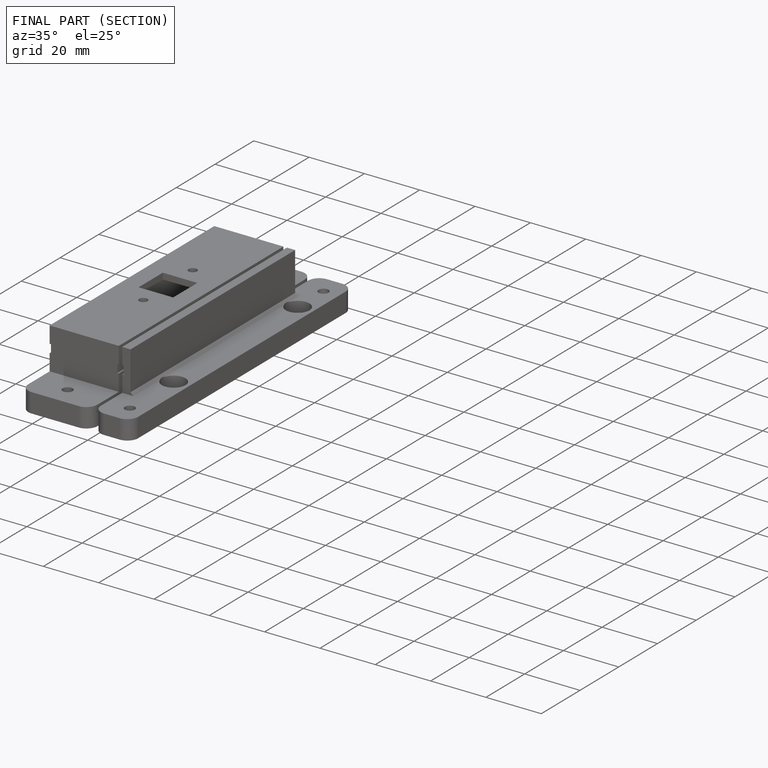
[diagram: finished part — half-section view (interior)]
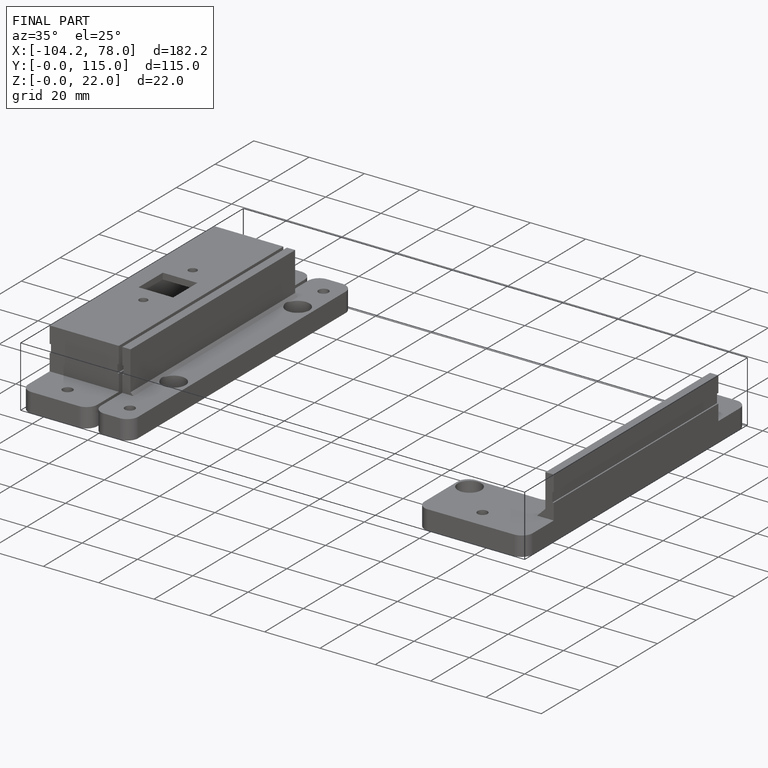
[diagram: finished part — iso view with bounding-box wireframe]
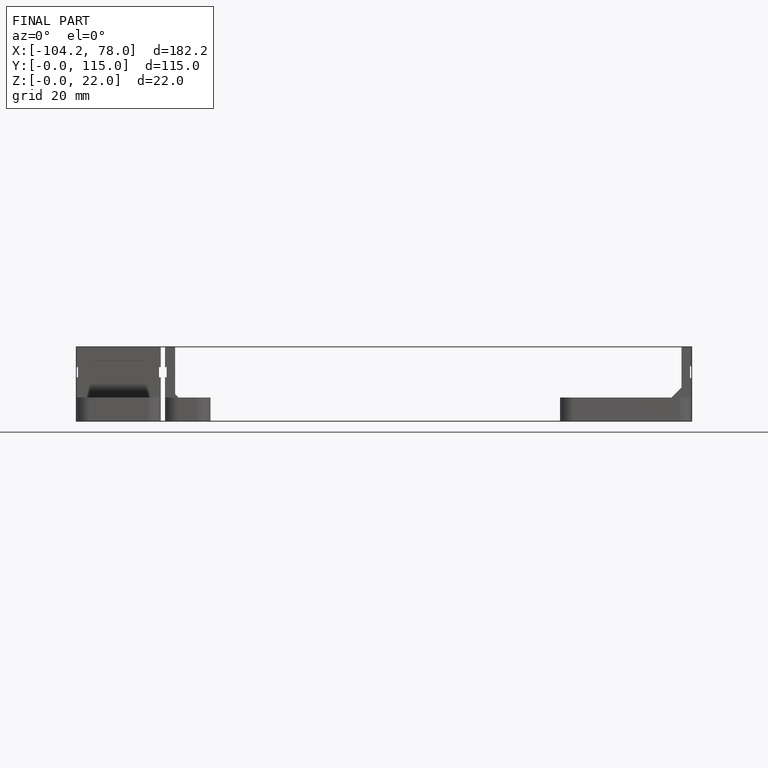
[diagram: finished part — front view with bounding-box wireframe]
